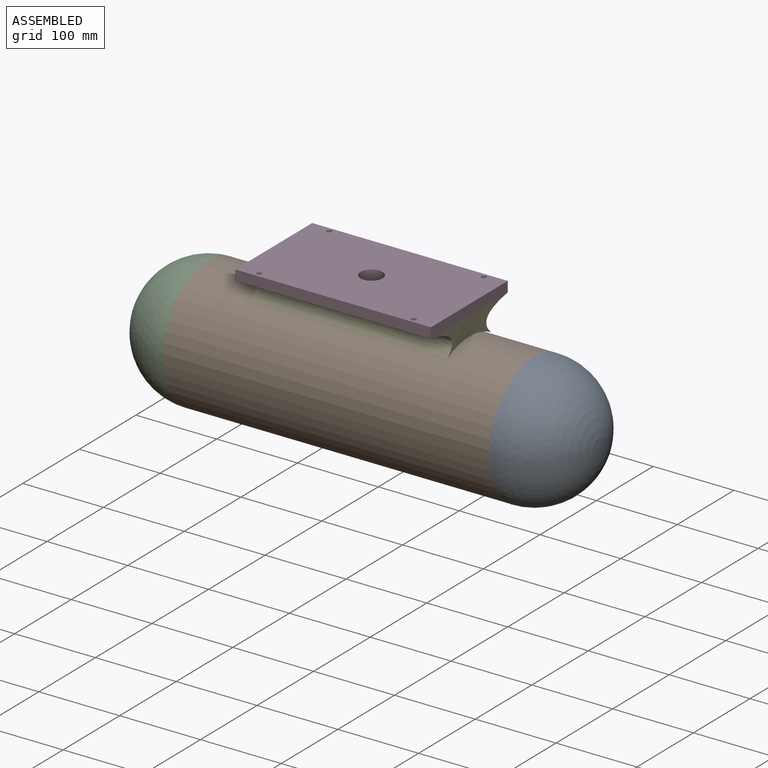
[diagram: assembled view]
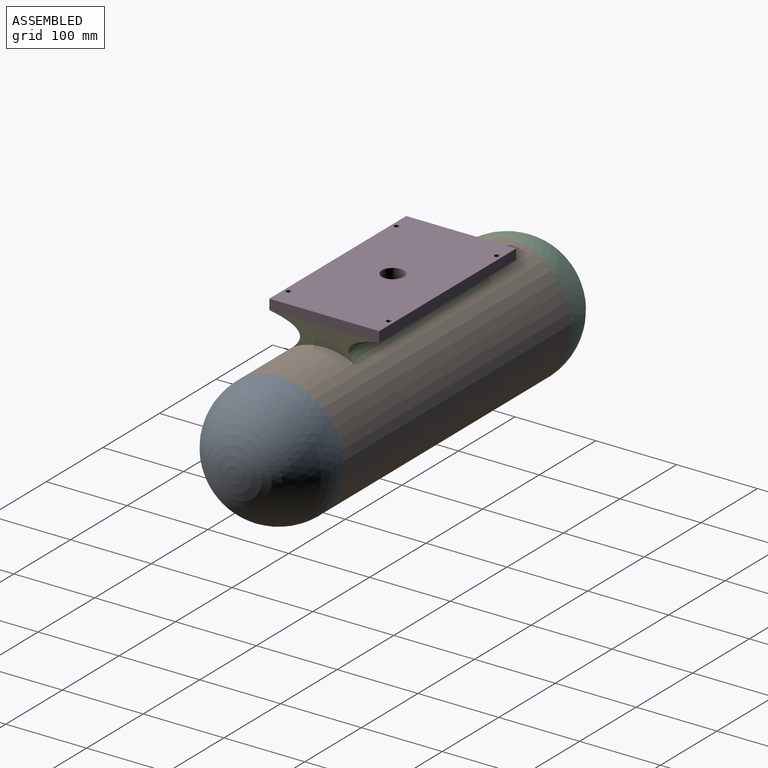
[diagram: assembled view, second angle]
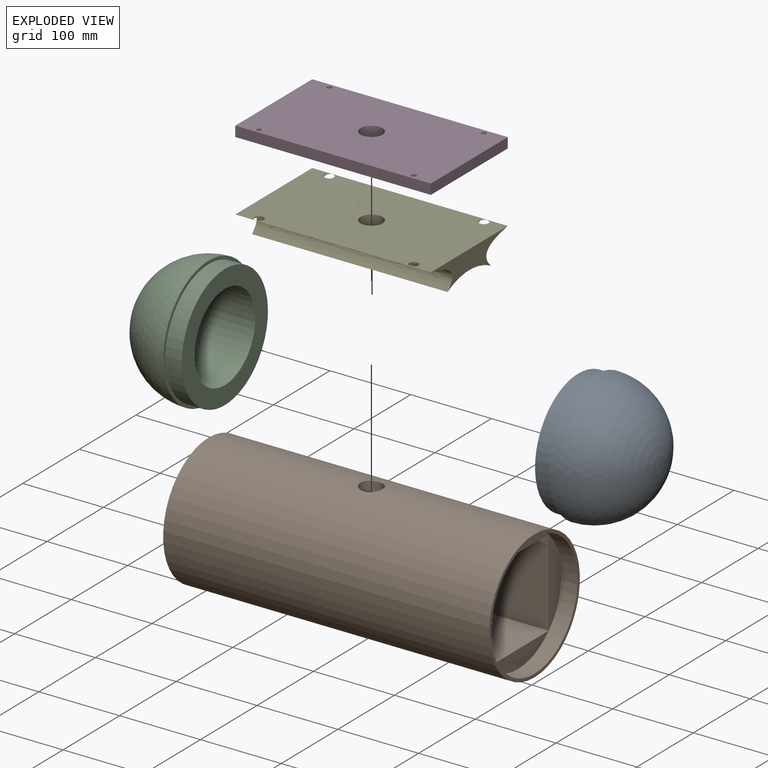
[diagram: exploded view]
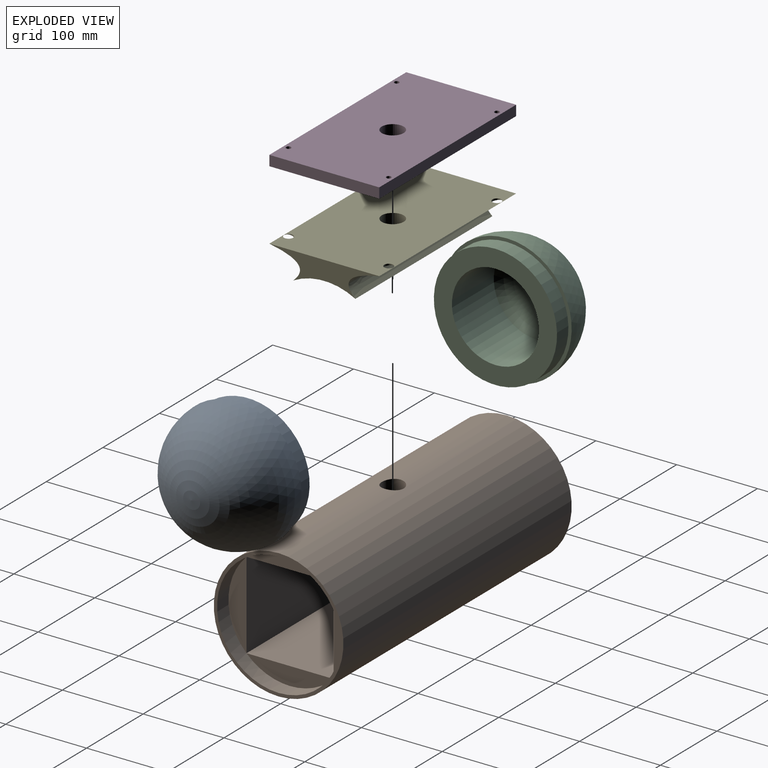
[diagram: exploded view, second angle]
ASSEMBLY  parts=5 mates=3
PART A: 6 faces, bbox 100.4x160.4x160.4 mm
  f0: plane 160.4x160.4mm, normal (1,0,0), area 1965.4mm2, adj f1,f5
  f1: cylinder r=76.2mm len=152.4mm, axis (-1,0,0), area 9655.4mm2, adj f0,f2
  f2: plane 152.4x152.4mm, normal (1,0,0), area 9120.7mm2, adj f1,f3
  f3: cylinder r=53.88mm len=107.76mm, axis (-1,0,0), area 25068.8mm2, adj f2,f4
  f4: sphere r=76.2mm, area 10685.6mm2, adj f3
  f5: sphere r=80.2mm, area 40413.7mm2, adj f0
PART B: 18 faces, bbox 403.3x160.4x160.4 mm
  f0: plane 363x107.76mm, normal (0,-1,0), area 39118mm2, adj f1,f3,f10,f15
  f1: plane 363x107.76mm, normal (0,0,1), area 39118mm2, adj f0,f2,f9,f14
  f2: plane 363x107.76mm, normal (0,1,0), area 39118mm2, adj f1,f3,f11,f16
  f3: plane 363x107.76mm, normal (0,0,-1), area 38536.9mm2, adj f0,f2,f7,f12,f17
  f4: plane 160.4x160.4mm, normal (-1,0,0), area 1965.4mm2, adj f5,f8
  f5: cylinder r=80.2mm len=403.33mm, axis (-1,0,0), area 202660.7mm2, adj f4,f6,f7
  f6: plane 160.4x160.4mm, normal (1,0,0), area 1965.4mm2, adj f5,f13
  f7: cylinder r=13.6mm len=27.2mm, axis (0,0,-1), area 2199.4mm2, adj f3,f5
  f8: cylinder r=76.2mm len=152.4mm, axis (-1,0,0), area 9655.4mm2, adj f4,f9,f10,f11,f12
  f9: plane 107.76x22.32mm, normal (-1,0,0), area 1657.1mm2, adj f1,f8
  f10: plane 107.76x22.32mm, normal (-1,0,0), area 1657.1mm2, adj f0,f8
  f11: plane 107.76x22.32mm, normal (-1,0,0), area 1657.1mm2, adj f2,f8
  f12: plane 107.76x22.32mm, normal (-1,0,0), area 1657.1mm2, adj f3,f8
  f13: cylinder r=76.2mm len=152.4mm, axis (1,0,0), area 9655.4mm2, adj f6,f14,f15,f16,f17
  f14: plane 107.76x22.32mm, normal (1,0,0), area 1657.1mm2, adj f1,f13
  f15: plane 107.76x22.32mm, normal (1,0,0), area 1657.1mm2, adj f0,f13
  f16: plane 107.76x22.32mm, normal (1,0,0), area 1657.1mm2, adj f2,f13
  f17: plane 107.76x22.32mm, normal (1,0,0), area 1657.1mm2, adj f3,f13
PART C: same geometry as A
PART D: 11 faces, bbox 242x136x12.7 mm
  f0: plane 136x12.7mm, normal (1,0,0), area 1727.2mm2, adj f1,f7,f9,f10
  f1: plane 242x12.7mm, normal (0,1,0), area 3073.4mm2, adj f0,f2,f9,f10
  f2: plane 136x12.7mm, normal (-1,0,0), area 1727.2mm2, adj f1,f7,f9,f10
  f3: cylinder r=3mm len=12.7mm, axis (0,0,-1), area 239.4mm2, adj f9,f10
  f4: cylinder r=3mm len=12.7mm, axis (0,0,-1), area 239.4mm2, adj f9,f10
  f5: cylinder r=3mm len=12.7mm, axis (0,0,-1), area 239.4mm2, adj f9,f10
  f6: cylinder r=13.6mm len=27.2mm, axis (0,0,-1), area 1085.2mm2, adj f9,f10
  f7: plane 242x12.7mm, normal (0,-1,0), area 3073.4mm2, adj f0,f2,f9,f10
  f8: cylinder r=3mm len=12.7mm, axis (0,0,-1), area 239.4mm2, adj f9,f10
  f9: plane 242x136mm, normal (0,0,1), area 32217.8mm2, adj f0,f1,f2,f3,f4,f5,f6,f7
  f10: plane 242x136mm, normal (0,0,-1), area 32217.8mm2, adj f0,f1,f2,f3,f4,f5,f6,f7
PART E: 11 faces, bbox 242x136x33.3 mm
  f0: extruded ~242x37.93mm, area 14775.4mm2, adj f2,f3,f4,f5,f8,f10
  f1: extruded ~242x37.93mm, area 14775.4mm2, adj f2,f3,f4,f5,f7,f9
  f2: cylinder r=80.2mm len=242mm, axis (-1,0,0), area 18874.2mm2, adj f0,f1,f4,f5,f6
  f3: plane 242x136mm, normal (0,0,1), area 31933.3mm2, adj f0,f1,f4,f5,f6,f7,f8,f9
  f4: plane 136x33.27mm, normal (1,0,0), area 1980.3mm2, adj f0,f1,f2,f3
  f5: plane 136x33.27mm, normal (-1,0,0), area 1980.3mm2, adj f0,f1,f2,f3
  f6: cylinder r=13.6mm len=27.2mm, axis (0,0,-1), area 2049.1mm2, adj f2,f3
  f7: cylinder r=5.62mm len=11.25mm, axis (0,0,1), area 41.3mm2, adj f1,f3
  f8: cylinder r=5.62mm len=11.25mm, axis (0,0,1), area 41.3mm2, adj f0,f3
  f9: cylinder r=5.62mm len=11.25mm, axis (0,0,1), area 41.3mm2, adj f1,f3
  f10: cylinder r=5.62mm len=11.25mm, axis (0,0,1), area 41.3mm2, adj f0,f3
PLACE A rot(axis=(0,1,0),180deg) t=(403.33,0,0)mm
PLACE B at identity
PLACE C at identity
PLACE D t=(0,0,1.5)mm
PLACE E t=(0,0,1.5)mm
MATE fastened A.f1 <-> B.f8  axis (-1,0,0) through (403.33,0,0)mm
MATE fastened E.f6 <-> B.f7  axis (0,0,-1) through (201.67,0,80.37)mm
MATE fastened D.f6 <-> E.f6  axis (0,0,-1) through (201.67,0,105.1)mm
